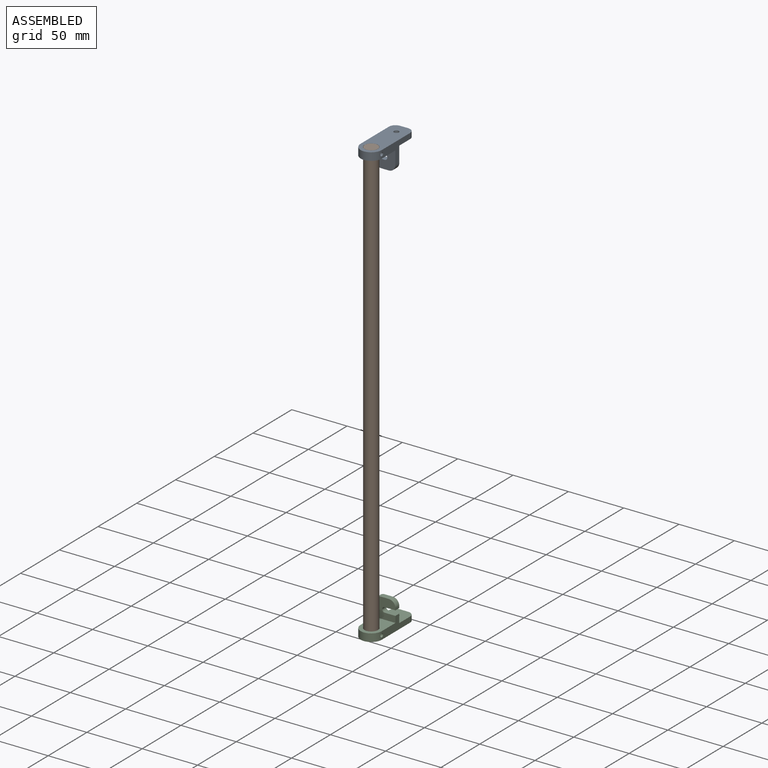
[diagram: assembled view]
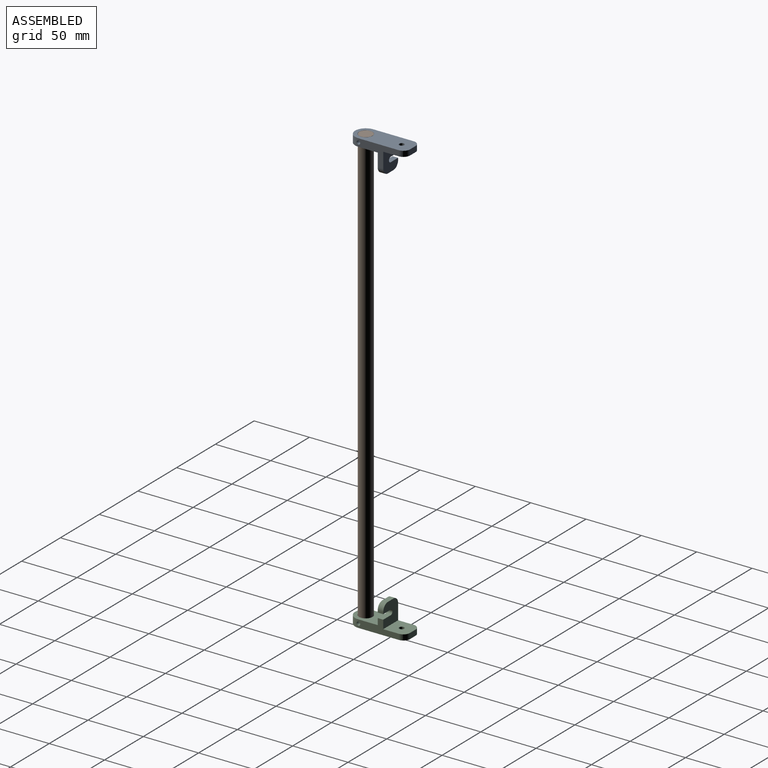
[diagram: assembled view, second angle]
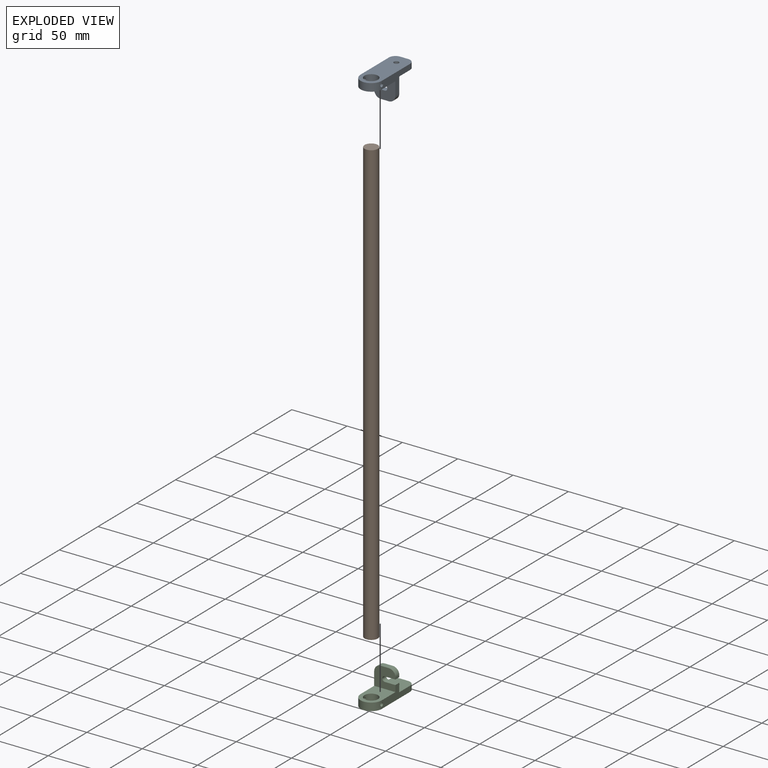
[diagram: exploded view]
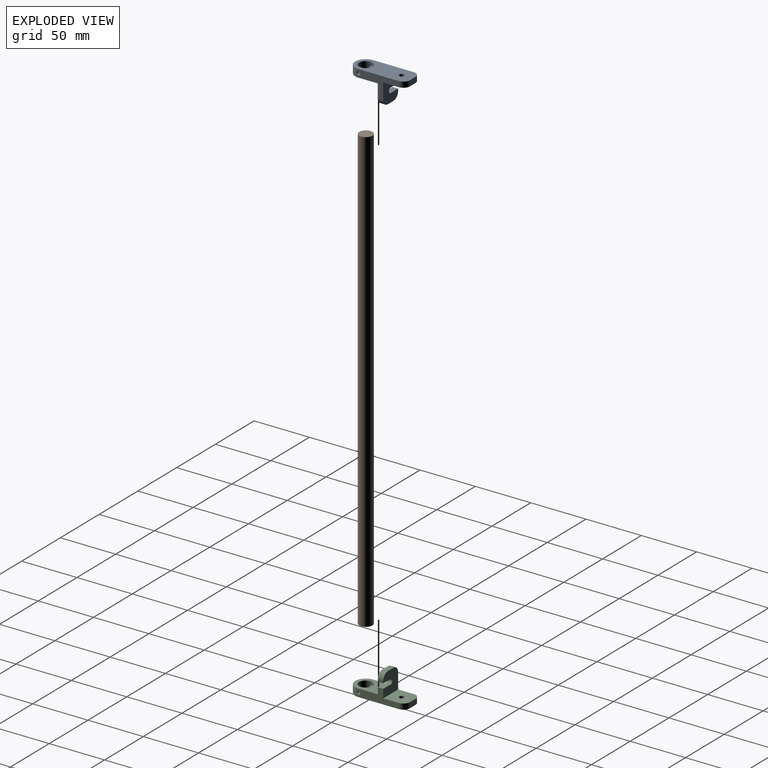
[diagram: exploded view, second angle]
ASSEMBLY  parts=3 mates=2
PART A: 22 faces, bbox 19.2x52.1x25 mm
  f0: plane 19.2x18mm, normal (0,1,0), area 279mm2, adj f1,f2,f6,f7,f11,f14,f15,f18
  f1: plane 5x1.75mm, normal (-1,0,0), area 8.7mm2, adj f0,f3,f14,f20
  f2: plane 36.5x19mm, normal (1,0,0), area 283.2mm2, adj f0,f3,f5,f9,f10,f11,f13,f15
  f3: plane 20x19.2mm, normal (0,-1,0), area 317.4mm2, adj f1,f2,f6,f7,f10,f14,f15,f18
  f4: cylinder r=6.15mm len=12.3mm, axis (0,0,-1), area 253.2mm2, adj f9,f11,f16,f17
  f5: cylinder r=9.6mm len=19.2mm, axis (0,0,-1), area 202.5mm2, adj f2,f7,f9,f11,f16,f17
  f6: plane 7.2x5mm, normal (0,0,1), area 36mm2, adj f0,f3,f14,f15
  f7: plane 36.5x12.75mm, normal (-1,0,0), area 252mm2, adj f0,f3,f5,f9,f10,f11,f12,f16
  f8: plane 7.2x5mm, normal (0,-1,0), area 36mm2, adj f9,f10,f12,f13
  f9: plane 52.1x19.2mm, normal (0,0,-1), area 810.6mm2, adj f2,f4,f5,f7,f8,f12,f13,f21
  f10: plane 20x19.2mm, normal (0,0,1), area 352.6mm2, adj f2,f3,f7,f8,f12,f13,f21
  f11: plane 27.1x19.2mm, normal (0,0,1), area 361.9mm2, adj f0,f2,f4,f5,f7
  f12: cylinder r=6mm len=6mm, axis (0,0,-1), area 47.1mm2, adj f7,f8,f9,f10
  f13: cylinder r=6mm len=6mm, axis (0,0,-1), area 47.1mm2, adj f2,f8,f9,f10
  f14: cylinder r=6mm len=6mm, axis (0,1,0), area 47.1mm2, adj f0,f1,f3,f6
  f15: cylinder r=6mm len=6mm, axis (0,-1,0), area 47.1mm2, adj f0,f2,f3,f6
  f16: cylinder r=1.65mm len=3.68mm, axis (1,0,0), area 36.6mm2, adj f4,f5,f7
  f17: cylinder r=1.65mm len=3.68mm, axis (1,0,0), area 36.6mm2, adj f2,f4,f5
  f18: cylinder r=2.25mm len=5mm, axis (0,1,0), area 35.3mm2, adj f0,f3,f19,f20
  f19: plane 9.6x5mm, normal (0,0,1), area 48mm2, adj f0,f3,f7,f18
  f20: plane 9.6x5mm, normal (0,0,-1), area 48mm2, adj f0,f1,f3,f18
  f21: cylinder r=2.25mm len=5mm, axis (0,0,1), area 70.7mm2, adj f9,f10
PART B: 3 faces, bbox 12x12x400 mm
  f0: cylinder r=6mm len=400mm, axis (0,0,-1), area 15079.6mm2, adj f1,f2
  f1: plane 12x12mm, normal (0,0,1), area 113.1mm2, adj f0
  f2: plane 12x12mm, normal (0,0,-1), area 113.1mm2, adj f0
PART C: same geometry as A
PLACE A rot(axis=(1,0,0),180deg) t=(-146.83,-1.7,531.92)mm
PLACE B rot(axis=(0,0,-1),180deg) t=(-178.84,-1.7,131.92)mm
PLACE C rot(axis=(0,0,-1),180deg) t=(-146.83,-1.7,131.92)mm
MATE fastened A.f4 <-> B.f0  axis (0,0,1) through (-146.83,-1.7,531.92)mm
MATE fastened C.f4 <-> B.f0  axis (0,0,-1) through (-146.83,-1.7,131.92)mm
